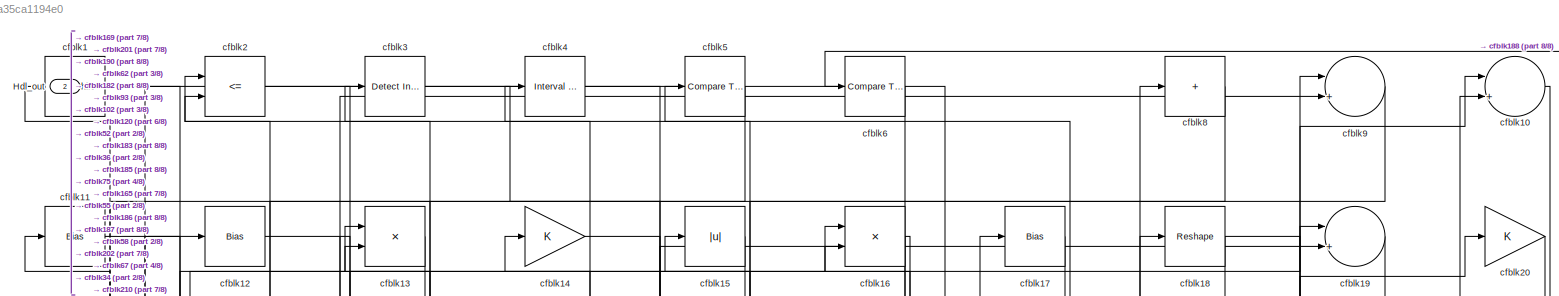
[diagram: root canvas - part 1/8, full width, top band]
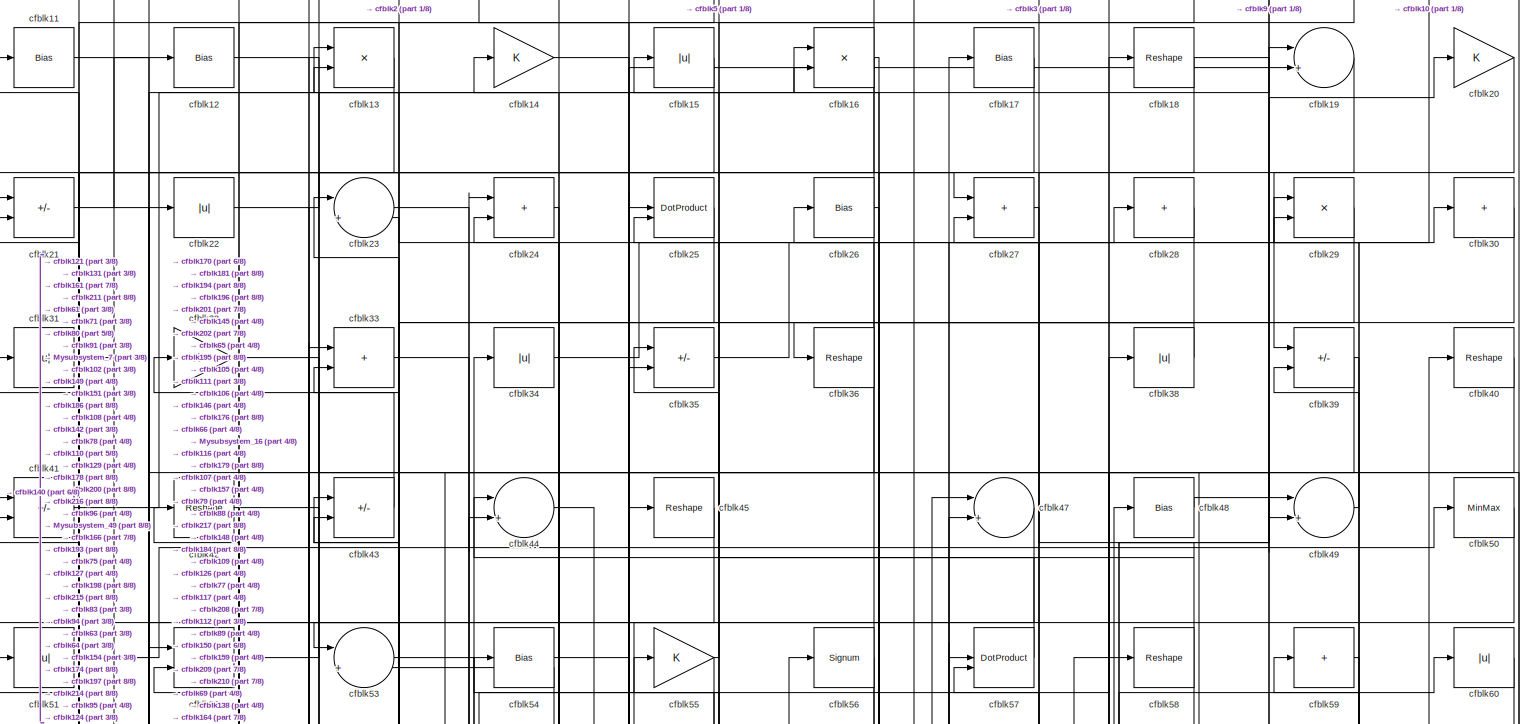
[diagram: root canvas - part 2/8, full width, top band]
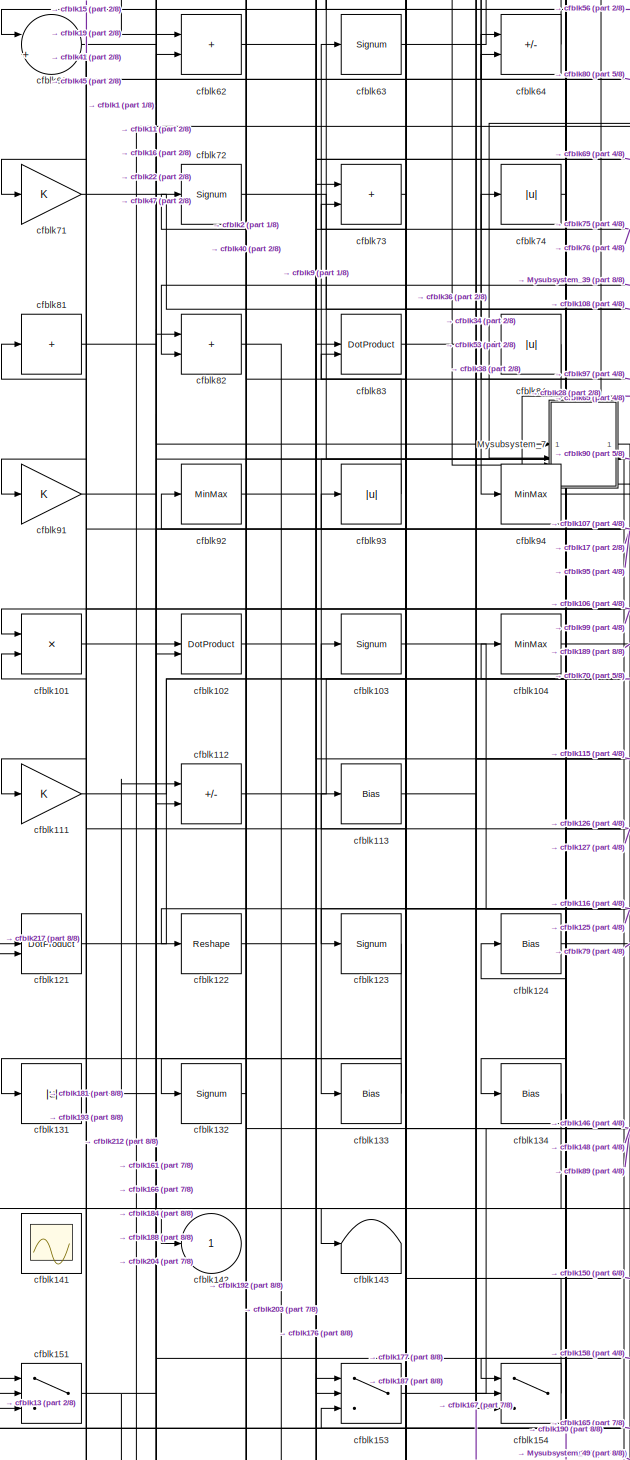
[diagram: root canvas - part 3/8, middle left region]
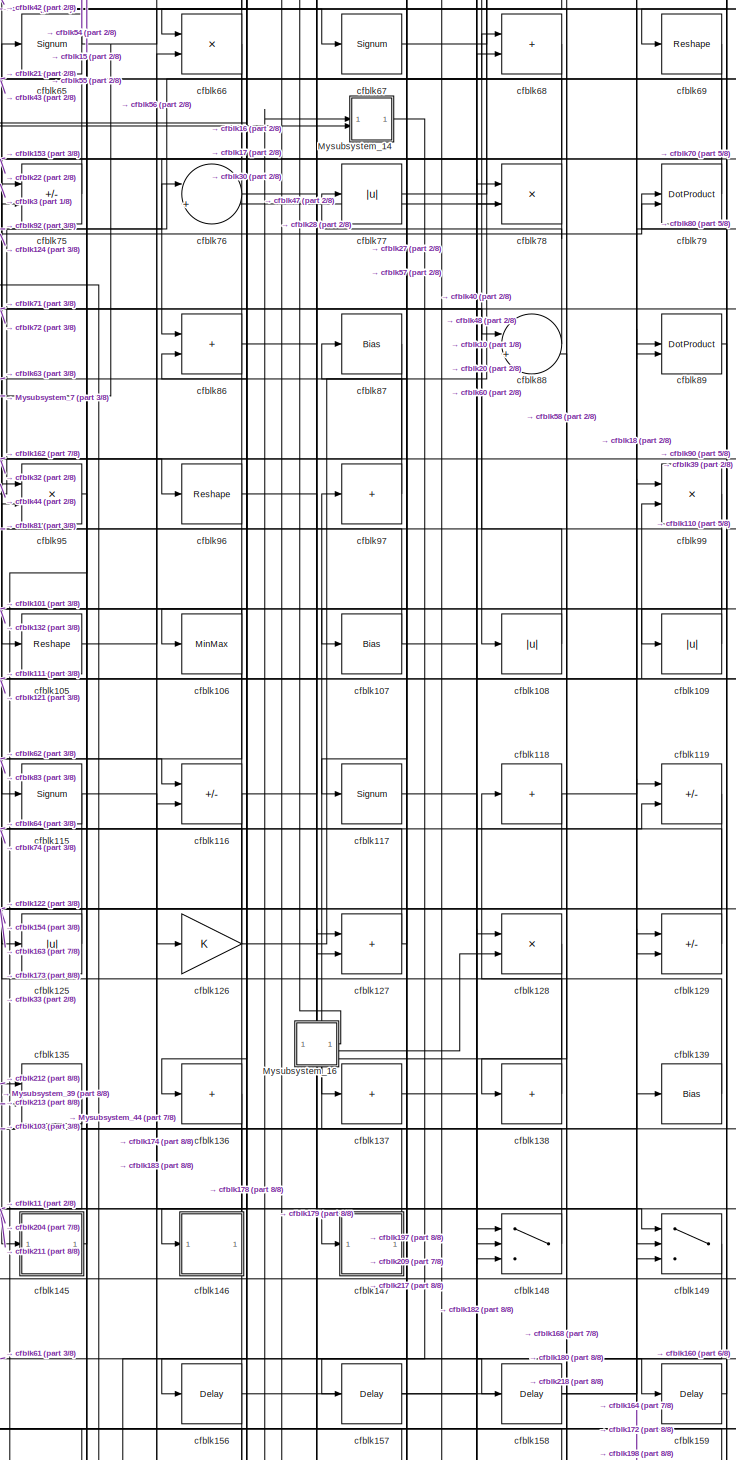
[diagram: root canvas - part 4/8, central region]
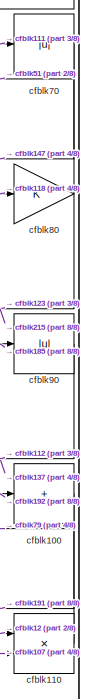
[diagram: root canvas - part 5/8, middle right region]
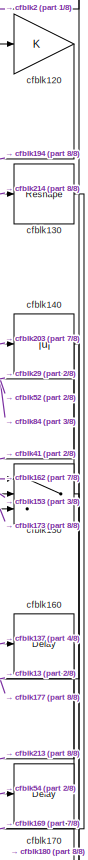
[diagram: root canvas - part 6/8, middle right region]
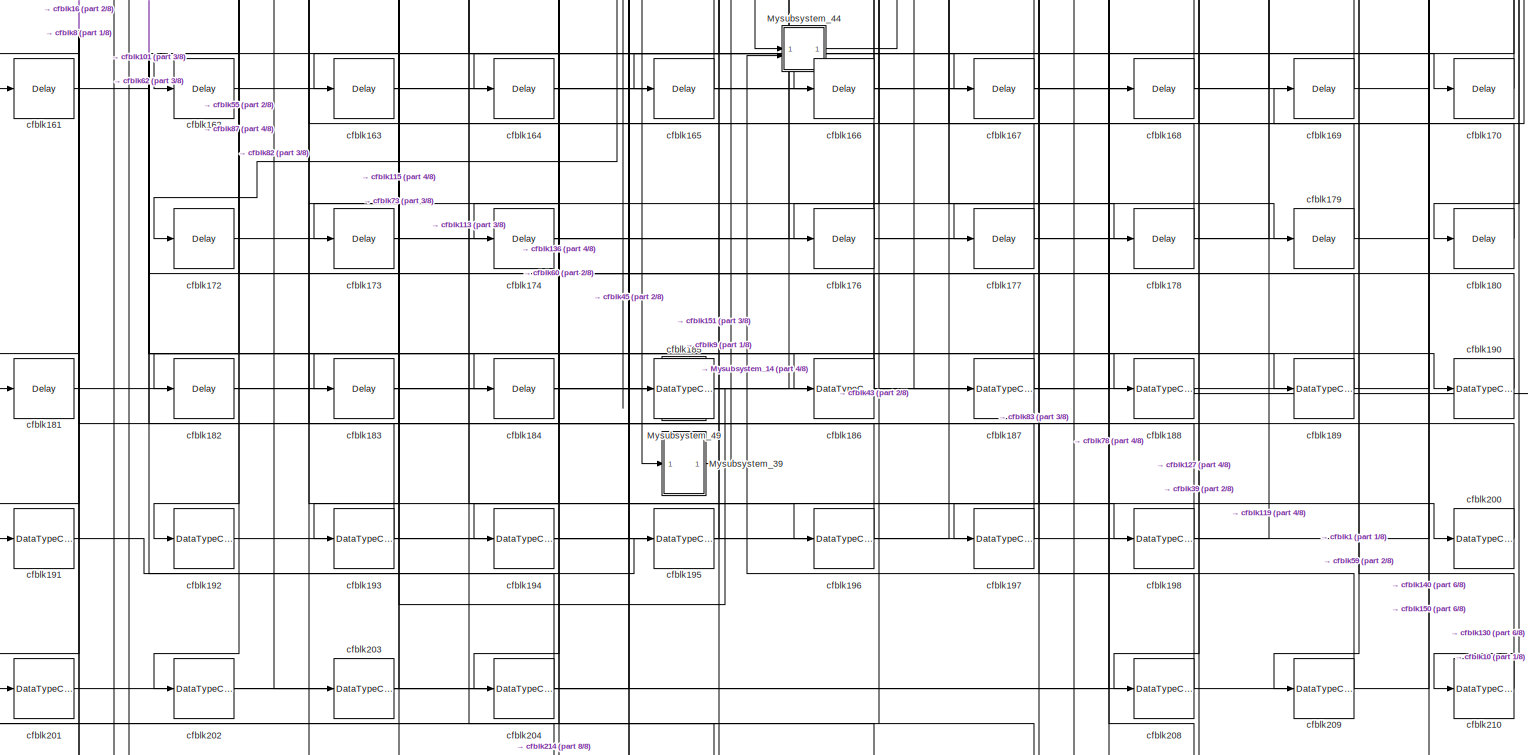
[diagram: root canvas - part 7/8, full width, bottom band]
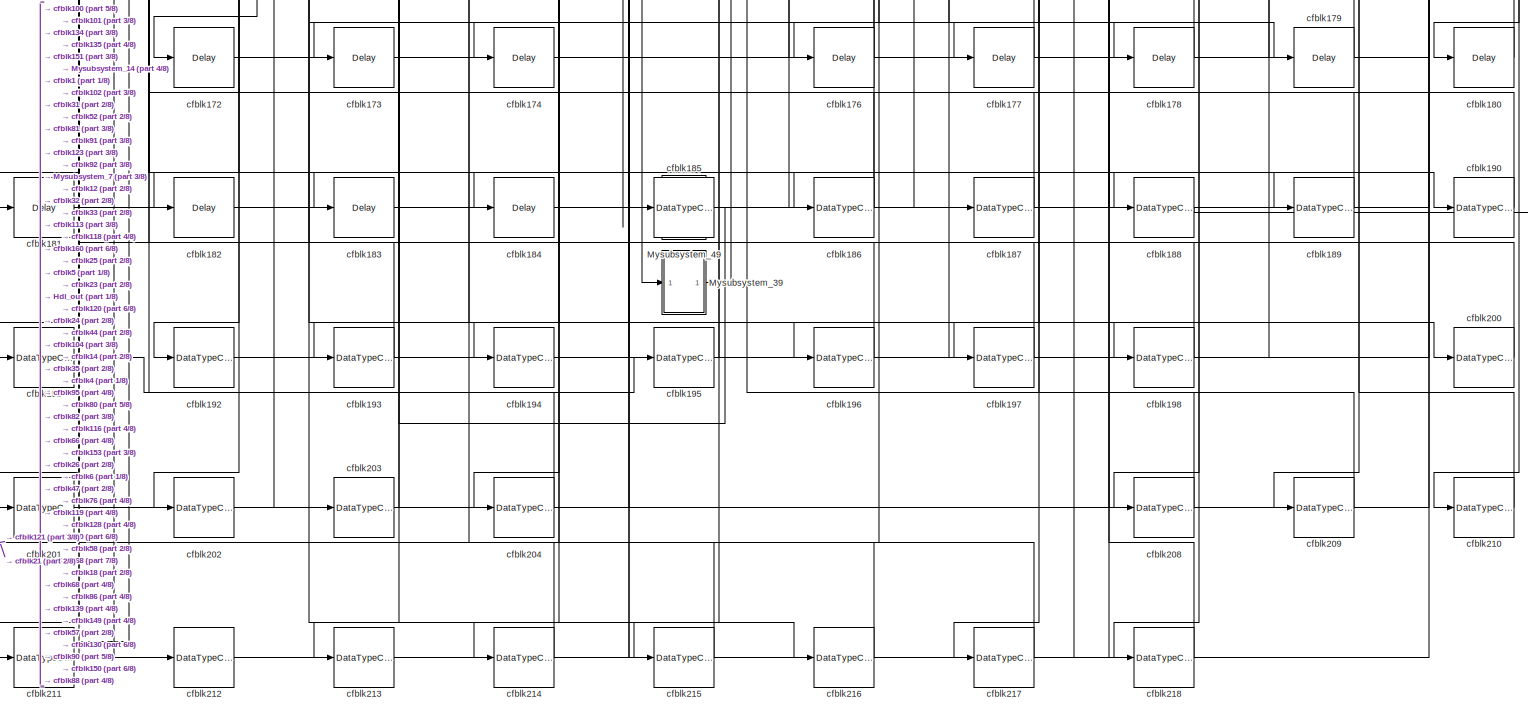
[diagram: root canvas - part 8/8, full width, bottom band]
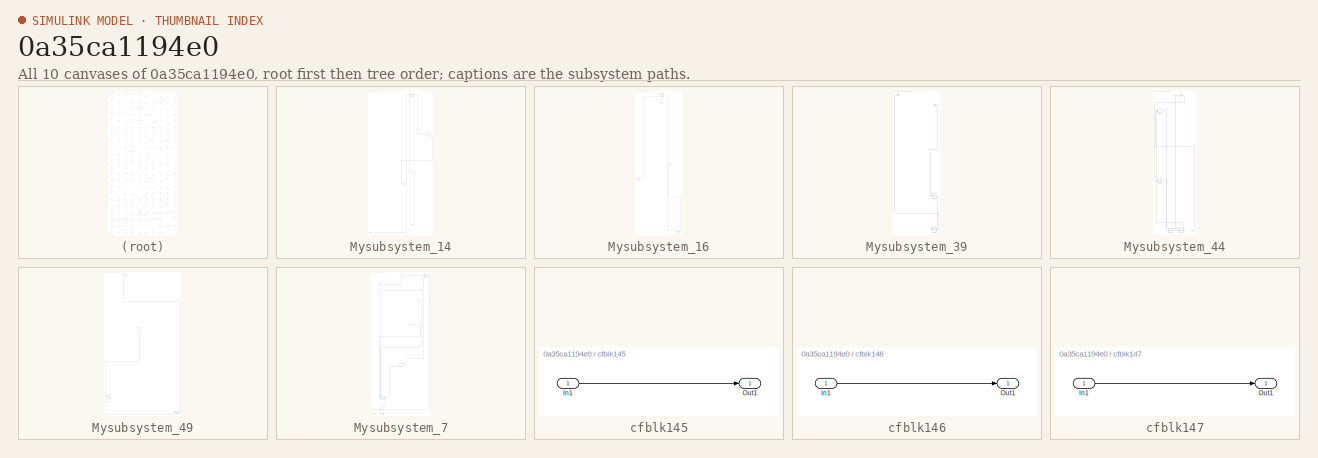
[diagram: thumbnail index - all 10 canvases of the model, root first then tree order]
MODEL slx_0a35ca1194e0
KIND model
CONFIG AbsTol = auto
CONFIG EnableMultiTasking = off
CONFIG FixedStep = auto
CONFIG MaxStep = auto
CONFIG MinStep = auto
CONFIG RelTol = 1e-3
CONFIG SampleTimeConstraint = Unconstrained
CONFIG SolverName = VariableStepAuto
CONFIG StartTime = 0.0
CONFIG StopTime = 10.0
BLOCK [Outport] Hdl_out
  OutDataTypeStr = uint8
  Port = 2
BLOCK [SubSystem] Mysubsystem_14
  RTWFcnName = Mysubsystem_14
  RTWFcnNameOpts = User specified
  RTWFileNameOpts = Use function name
  RTWSystemCode = Reusable function
  TreatAsAtomicUnit = on
BLOCK [Inport] Mysubsystem_14/In1
BLOCK [Inport] Mysubsystem_14/In2
  Port = 2
BLOCK [Outport] Mysubsystem_14/Out1
BLOCK [DotProduct] Mysubsystem_14/cfblk46
  OutDataTypeStr = Inherit: Inherit via internal rule
BLOCK [Abs] Mysubsystem_14/cfblk98
  SaturateOnIntegerOverflow = off
BLOCK [SubSystem] Mysubsystem_16
  RTWFcnName = Mysubsystem_16
  RTWFcnNameOpts = User specified
  RTWFileNameOpts = Use function name
  RTWSystemCode = Reusable function
  TreatAsAtomicUnit = on
BLOCK [Outport] Mysubsystem_16/Out1
BLOCK [Outport] Mysubsystem_16/Out2
  Port = 2
BLOCK [Ground] Mysubsystem_16/cfblk144
BLOCK [DataTypeConversion] Mysubsystem_16/cfblk219
  OutDataTypeStr = uint8
  RndMeth = Floor
  SaturateOnIntegerOverflow = off
BLOCK [Reshape] Mysubsystem_16/cfblk37
BLOCK [SubSystem] Mysubsystem_39
  RTWFcnName = Mysubsystem_39
  RTWFcnNameOpts = User specified
  RTWFileNameOpts = Use function name
  RTWSystemCode = Reusable function
  TreatAsAtomicUnit = on
BLOCK [Inport] Mysubsystem_39/In1
BLOCK [Outport] Mysubsystem_39/Out1
BLOCK [Delay] Mysubsystem_39/cfblk175
  InputPortMap = u0
  SampleTime = 1
BLOCK [DataTypeConversion] Mysubsystem_39/cfblk205
  OutDataTypeStr = uint8
  RndMeth = Floor
  SaturateOnIntegerOverflow = off
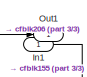
[diagram: Mysubsystem_44 - part 1/3, top center region]
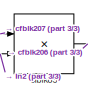
[diagram: Mysubsystem_44 - part 2/3, top left region]
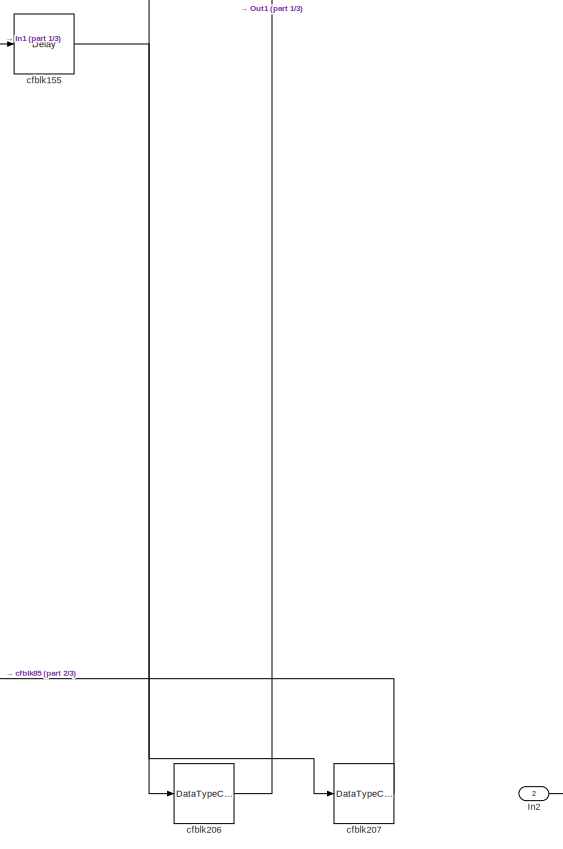
[diagram: Mysubsystem_44 - part 3/3, full width, bottom band]
BLOCK [SubSystem] Mysubsystem_44
  RTWFcnName = Mysubsystem_44
  RTWFcnNameOpts = User specified
  RTWFileNameOpts = Use function name
  RTWSystemCode = Reusable function
  TreatAsAtomicUnit = on
BLOCK [Inport] Mysubsystem_44/In1
BLOCK [Inport] Mysubsystem_44/In2
  Port = 2
BLOCK [Outport] Mysubsystem_44/Out1
BLOCK [Delay] Mysubsystem_44/cfblk155
  InputPortMap = u0
  SampleTime = 1
BLOCK [DataTypeConversion] Mysubsystem_44/cfblk206
  OutDataTypeStr = uint8
  RndMeth = Floor
  SaturateOnIntegerOverflow = off
BLOCK [DataTypeConversion] Mysubsystem_44/cfblk207
  OutDataTypeStr = uint8
  RndMeth = Floor
  SaturateOnIntegerOverflow = off
BLOCK [Product] Mysubsystem_44/cfblk85
  Inputs = */
  RndMeth = Zero
  SaturateOnIntegerOverflow = on
BLOCK [SubSystem] Mysubsystem_49
  RTWFcnName = Mysubsystem_49
  RTWFcnNameOpts = User specified
  RTWFileNameOpts = Use function name
  RTWSystemCode = Reusable function
  TreatAsAtomicUnit = on
BLOCK [Inport] Mysubsystem_49/In1
BLOCK [Outport] Mysubsystem_49/Out1
BLOCK [Delay] Mysubsystem_49/cfblk171
  InputPortMap = u0
  SampleTime = 1
BLOCK [DataTypeConversion] Mysubsystem_49/cfblk199
  OutDataTypeStr = uint8
  RndMeth = Floor
  SaturateOnIntegerOverflow = off
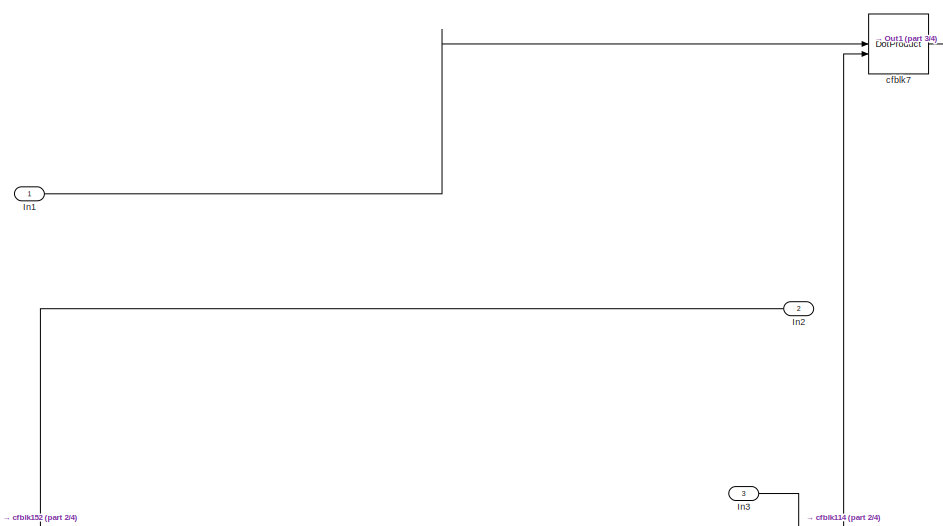
[diagram: Mysubsystem_7 - part 1/4, full width, top band]
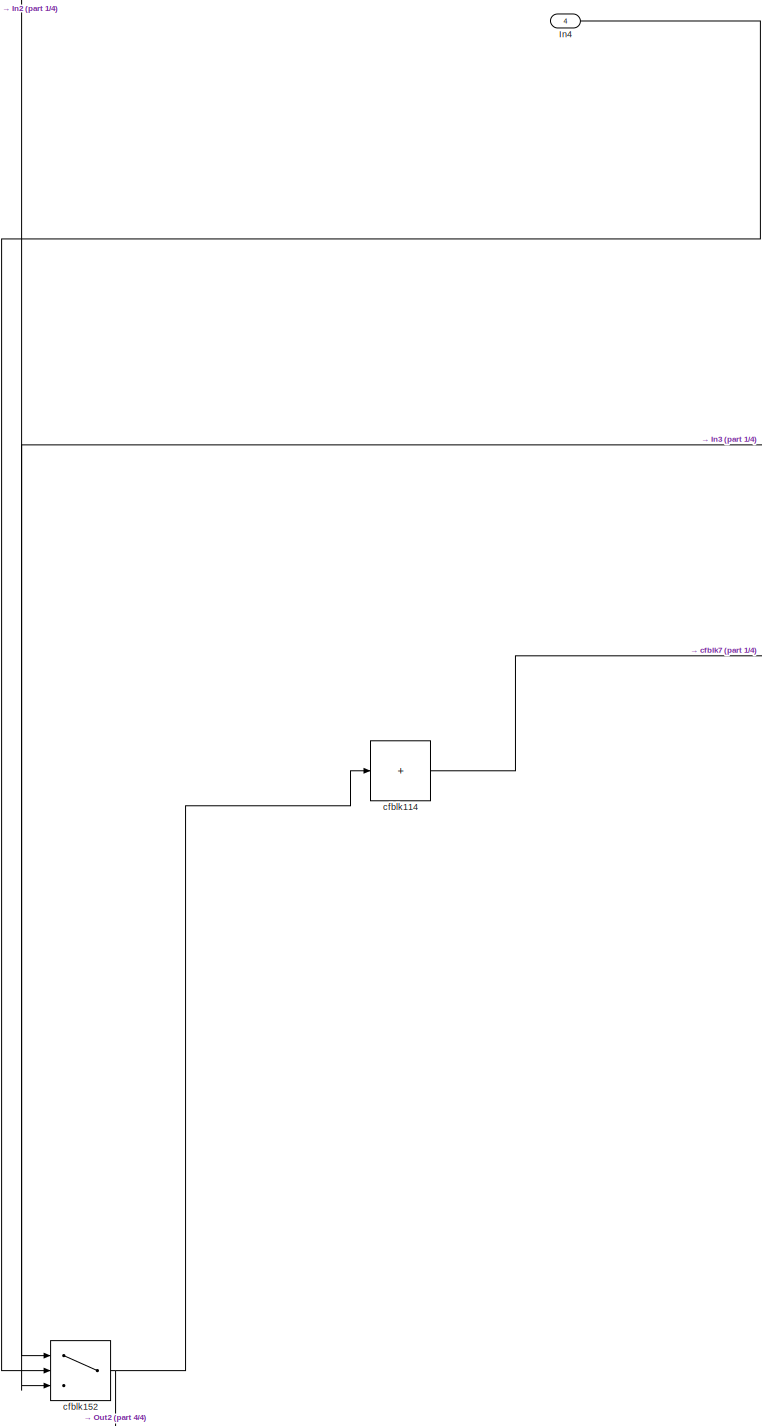
[diagram: Mysubsystem_7 - part 2/4, central region]
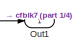
[diagram: Mysubsystem_7 - part 3/4, bottom left region]
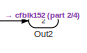
[diagram: Mysubsystem_7 - part 4/4, bottom left region]
BLOCK [SubSystem] Mysubsystem_7
  RTWFcnName = Mysubsystem_7
  RTWFcnNameOpts = User specified
  RTWFileNameOpts = Use function name
  RTWSystemCode = Reusable function
  TreatAsAtomicUnit = on
BLOCK [Inport] Mysubsystem_7/In1
BLOCK [Inport] Mysubsystem_7/In2
  Port = 2
BLOCK [Inport] Mysubsystem_7/In3
  Port = 3
BLOCK [Inport] Mysubsystem_7/In4
  Port = 4
BLOCK [Outport] Mysubsystem_7/Out1
BLOCK [Outport] Mysubsystem_7/Out2
  Port = 2
BLOCK [Sum] Mysubsystem_7/cfblk114
  IconShape = rectangular
  Inputs = +
BLOCK [Switch] Mysubsystem_7/cfblk152
  InputSameDT = off
  SaturateOnIntegerOverflow = off
BLOCK [DotProduct] Mysubsystem_7/cfblk7
  OutDataTypeStr = Inherit: Inherit via internal rule
BLOCK [ArithShift] cfblk1
  BitShiftNumber = 8
  InputPortMap = u0
BLOCK [Sum] cfblk10
  Inputs = |++
  OutDataTypeStr = uint8
BLOCK [Sum] cfblk100
  IconShape = rectangular
  Inputs = +
  OutDataTypeStr = uint8
BLOCK [Product] cfblk101
  Inputs = */
  OutDataTypeStr = uint8
  RndMeth = Zero
  SaturateOnIntegerOverflow = on
BLOCK [DotProduct] cfblk102
  OutDataTypeStr = uint8
BLOCK [Signum] cfblk103
BLOCK [MinMax] cfblk104
  OutDataTypeStr = uint8
BLOCK [Reshape] cfblk105
BLOCK [MinMax] cfblk106
  OutDataTypeStr = uint8
BLOCK [Bias] cfblk107
  Bias = 0.0
  SaturateOnIntegerOverflow = off
BLOCK [Abs] cfblk108
  OutDataTypeStr = uint8
  SaturateOnIntegerOverflow = off
BLOCK [Abs] cfblk109
  OutDataTypeStr = uint8
  SaturateOnIntegerOverflow = off
BLOCK [Bias] cfblk11
  Bias = 0.0
  SaturateOnIntegerOverflow = off
BLOCK [Product] cfblk110
  Inputs = */
  OutDataTypeStr = uint8
  RndMeth = Zero
  SaturateOnIntegerOverflow = on
BLOCK [Gain] cfblk111
  OutDataTypeStr = uint8
BLOCK [Sum] cfblk112
  IconShape = rectangular
  Inputs = +-
  OutDataTypeStr = uint8
BLOCK [Bias] cfblk113
  Bias = 0.0
  SaturateOnIntegerOverflow = off
BLOCK [Signum] cfblk115
BLOCK [Sum] cfblk116
  IconShape = rectangular
  Inputs = +-
  OutDataTypeStr = uint8
BLOCK [Signum] cfblk117
BLOCK [Sum] cfblk118
  IconShape = rectangular
  Inputs = +
  OutDataTypeStr = uint8
BLOCK [Sum] cfblk119
  IconShape = rectangular
  Inputs = +-
  OutDataTypeStr = uint8
BLOCK [Bias] cfblk12
  Bias = 0.0
  SaturateOnIntegerOverflow = off
BLOCK [Gain] cfblk120
  OutDataTypeStr = uint8
BLOCK [DotProduct] cfblk121
  OutDataTypeStr = uint8
BLOCK [Reshape] cfblk122
BLOCK [Signum] cfblk123
BLOCK [Bias] cfblk124
  Bias = 0.0
  SaturateOnIntegerOverflow = off
BLOCK [Abs] cfblk125
  OutDataTypeStr = uint8
  SaturateOnIntegerOverflow = off
BLOCK [Gain] cfblk126
  OutDataTypeStr = uint8
BLOCK [Sum] cfblk127
  IconShape = rectangular
  OutDataTypeStr = uint8
BLOCK [Product] cfblk128
  Inputs = */
  OutDataTypeStr = uint8
  RndMeth = Zero
  SaturateOnIntegerOverflow = on
BLOCK [Sum] cfblk129
  IconShape = rectangular
  Inputs = +-
  OutDataTypeStr = uint8
BLOCK [Product] cfblk13
  Inputs = */
  OutDataTypeStr = uint8
  RndMeth = Zero
  SaturateOnIntegerOverflow = on
BLOCK [Reshape] cfblk130
BLOCK [Abs] cfblk131
  OutDataTypeStr = uint8
  SaturateOnIntegerOverflow = off
BLOCK [Signum] cfblk132
BLOCK [Bias] cfblk133
  Bias = 0.0
  SaturateOnIntegerOverflow = off
BLOCK [Bias] cfblk134
  Bias = 0.0
  SaturateOnIntegerOverflow = off
BLOCK [Sum] cfblk135
  IconShape = rectangular
  OutDataTypeStr = uint8
BLOCK [Sum] cfblk136
  IconShape = rectangular
  Inputs = +
  OutDataTypeStr = uint8
BLOCK [Sum] cfblk137
  IconShape = rectangular
  Inputs = +
  OutDataTypeStr = uint8
BLOCK [Sum] cfblk138
  IconShape = rectangular
  Inputs = +
  OutDataTypeStr = uint8
BLOCK [Bias] cfblk139
  Bias = 0.0
  SaturateOnIntegerOverflow = off
BLOCK [Gain] cfblk14
  OutDataTypeStr = uint8
BLOCK [Abs] cfblk140
  OutDataTypeStr = uint8
  SaturateOnIntegerOverflow = off
BLOCK [Scope] cfblk141
  Floating = on
  NumInputPorts = 1
  ScopeSpecificationString = Simulink.scopes.TimeScopeBlockCfg('CurrentConfiguration', extmgr.ConfigurationSet(extmgr.Configuration('Core','General UI',true,'FigureColor',[0.156862745098039 0.156862745098039 0.156862745098039]),extmgr.Configuration('Core','Source UI',true),extmgr.Configuration('Sources','WiredSimulink',true,'DataLoggingVariableName','ScopeData1','DataLoggingSaveFormat','StructureWithTime','DataLoggingLimitDat...<+2713ch>
BLOCK [Outport] cfblk142
  OutDataTypeStr = uint8
  VectorParamsAs1DForOutWhenUnconnected = off
BLOCK [Terminator] cfblk143
BLOCK [SubSystem] cfblk145
  LibrarySourceBlock = hdlsllib/Ports &\nSubsystems/Subsystem
BLOCK [Inport] cfblk145/In1
BLOCK [Outport] cfblk145/Out1
BLOCK [SubSystem] cfblk146
  LibrarySourceBlock = hdlsllib/Ports &\nSubsystems/Subsystem
BLOCK [Inport] cfblk146/In1
BLOCK [Outport] cfblk146/Out1
BLOCK [SubSystem] cfblk147
  LibrarySourceBlock = hdlsllib/Ports &\nSubsystems/Subsystem
BLOCK [Inport] cfblk147/In1
BLOCK [Outport] cfblk147/Out1
BLOCK [Switch] cfblk148
  InputSameDT = off
  OutDataTypeStr = uint8
  SaturateOnIntegerOverflow = off
BLOCK [Switch] cfblk149
  InputSameDT = off
  OutDataTypeStr = uint8
  SaturateOnIntegerOverflow = off
BLOCK [Abs] cfblk15
  OutDataTypeStr = uint8
  SaturateOnIntegerOverflow = off
BLOCK [Switch] cfblk150
  InputSameDT = off
  OutDataTypeStr = uint8
  SaturateOnIntegerOverflow = off
BLOCK [Switch] cfblk151
  InputSameDT = off
  OutDataTypeStr = uint8
  SaturateOnIntegerOverflow = off
BLOCK [Switch] cfblk153
  InputSameDT = off
  OutDataTypeStr = uint8
  SaturateOnIntegerOverflow = off
BLOCK [Switch] cfblk154
  InputSameDT = off
  OutDataTypeStr = uint8
  SaturateOnIntegerOverflow = off
BLOCK [Delay] cfblk156
  InputPortMap = u0
  SampleTime = 1
BLOCK [Delay] cfblk157
  InputPortMap = u0
  SampleTime = 1
BLOCK [Delay] cfblk158
  InputPortMap = u0
  SampleTime = 1
BLOCK [Delay] cfblk159
  InputPortMap = u0
  SampleTime = 1
BLOCK [Product] cfblk16
  Inputs = */
  OutDataTypeStr = uint8
  RndMeth = Zero
  SaturateOnIntegerOverflow = on
BLOCK [Delay] cfblk160
  InputPortMap = u0
  SampleTime = 1
BLOCK [Delay] cfblk161
  InputPortMap = u0
  SampleTime = 1
BLOCK [Delay] cfblk162
  InputPortMap = u0
  SampleTime = 1
BLOCK [Delay] cfblk163
  InputPortMap = u0
  SampleTime = 1
BLOCK [Delay] cfblk164
  InputPortMap = u0
  SampleTime = 1
BLOCK [Delay] cfblk165
  InputPortMap = u0
  SampleTime = 1
BLOCK [Delay] cfblk166
  InputPortMap = u0
  SampleTime = 1
BLOCK [Delay] cfblk167
  InputPortMap = u0
  SampleTime = 1
BLOCK [Delay] cfblk168
  InputPortMap = u0
  SampleTime = 1
BLOCK [Delay] cfblk169
  InputPortMap = u0
  SampleTime = 1
BLOCK [Bias] cfblk17
  Bias = 0.0
  SaturateOnIntegerOverflow = off
BLOCK [Delay] cfblk170
  InputPortMap = u0
  SampleTime = 1
BLOCK [Delay] cfblk172
  InputPortMap = u0
  SampleTime = 1
BLOCK [Delay] cfblk173
  InputPortMap = u0
  SampleTime = 1
BLOCK [Delay] cfblk174
  InputPortMap = u0
  SampleTime = 1
BLOCK [Delay] cfblk176
  InputPortMap = u0
  SampleTime = 1
BLOCK [Delay] cfblk177
  InputPortMap = u0
  SampleTime = 1
BLOCK [Delay] cfblk178
  InputPortMap = u0
  SampleTime = 1
BLOCK [Delay] cfblk179
  InputPortMap = u0
  SampleTime = 1
BLOCK [Reshape] cfblk18
BLOCK [Delay] cfblk180
  InputPortMap = u0
  SampleTime = 1
BLOCK [Delay] cfblk181
  InputPortMap = u0
  SampleTime = 1
BLOCK [Delay] cfblk182
  InputPortMap = u0
  SampleTime = 1
BLOCK [Delay] cfblk183
  InputPortMap = u0
  SampleTime = 1
BLOCK [Delay] cfblk184
  InputPortMap = u0
  SampleTime = 1
BLOCK [DataTypeConversion] cfblk185
  OutDataTypeStr = uint8
  RndMeth = Floor
  SaturateOnIntegerOverflow = off
BLOCK [DataTypeConversion] cfblk186
  OutDataTypeStr = uint8
  RndMeth = Floor
  SaturateOnIntegerOverflow = off
BLOCK [DataTypeConversion] cfblk187
  OutDataTypeStr = uint8
  RndMeth = Floor
  SaturateOnIntegerOverflow = off
BLOCK [DataTypeConversion] cfblk188
  OutDataTypeStr = uint8
  RndMeth = Floor
  SaturateOnIntegerOverflow = off
BLOCK [DataTypeConversion] cfblk189
  OutDataTypeStr = uint8
  RndMeth = Floor
  SaturateOnIntegerOverflow = off
BLOCK [Sum] cfblk19
  Inputs = |++
  OutDataTypeStr = uint8
BLOCK [DataTypeConversion] cfblk190
  OutDataTypeStr = uint8
  RndMeth = Floor
  SaturateOnIntegerOverflow = off
BLOCK [DataTypeConversion] cfblk191
  OutDataTypeStr = uint8
  RndMeth = Floor
  SaturateOnIntegerOverflow = off
BLOCK [DataTypeConversion] cfblk192
  OutDataTypeStr = uint8
  RndMeth = Floor
  SaturateOnIntegerOverflow = off
BLOCK [DataTypeConversion] cfblk193
  OutDataTypeStr = uint8
  RndMeth = Floor
  SaturateOnIntegerOverflow = off
BLOCK [DataTypeConversion] cfblk194
  OutDataTypeStr = uint8
  RndMeth = Floor
  SaturateOnIntegerOverflow = off
BLOCK [DataTypeConversion] cfblk195
  OutDataTypeStr = uint8
  RndMeth = Floor
  SaturateOnIntegerOverflow = off
BLOCK [DataTypeConversion] cfblk196
  OutDataTypeStr = uint8
  RndMeth = Floor
  SaturateOnIntegerOverflow = off
BLOCK [DataTypeConversion] cfblk197
  OutDataTypeStr = uint8
  RndMeth = Floor
  SaturateOnIntegerOverflow = off
BLOCK [DataTypeConversion] cfblk198
  OutDataTypeStr = uint8
  RndMeth = Floor
  SaturateOnIntegerOverflow = off
BLOCK [RelationalOperator] cfblk2
  InputSameDT = off
  Operator = <=
  OutDataTypeStr = boolean
BLOCK [Gain] cfblk20
  OutDataTypeStr = uint8
BLOCK [DataTypeConversion] cfblk200
  OutDataTypeStr = uint8
  RndMeth = Floor
  SaturateOnIntegerOverflow = off
BLOCK [DataTypeConversion] cfblk201
  OutDataTypeStr = uint8
  RndMeth = Floor
  SaturateOnIntegerOverflow = off
BLOCK [DataTypeConversion] cfblk202
  OutDataTypeStr = uint8
  RndMeth = Floor
  SaturateOnIntegerOverflow = off
BLOCK [DataTypeConversion] cfblk203
  OutDataTypeStr = uint8
  RndMeth = Floor
  SaturateOnIntegerOverflow = off
BLOCK [DataTypeConversion] cfblk204
  OutDataTypeStr = uint8
  RndMeth = Floor
  SaturateOnIntegerOverflow = off
BLOCK [DataTypeConversion] cfblk208
  OutDataTypeStr = uint8
  RndMeth = Floor
  SaturateOnIntegerOverflow = off
BLOCK [DataTypeConversion] cfblk209
  OutDataTypeStr = uint8
  RndMeth = Floor
  SaturateOnIntegerOverflow = off
BLOCK [Sum] cfblk21
  IconShape = rectangular
  Inputs = +-
  OutDataTypeStr = uint8
BLOCK [DataTypeConversion] cfblk210
  OutDataTypeStr = uint8
  RndMeth = Floor
  SaturateOnIntegerOverflow = off
BLOCK [DataTypeConversion] cfblk211
  OutDataTypeStr = uint8
  RndMeth = Floor
  SaturateOnIntegerOverflow = off
BLOCK [DataTypeConversion] cfblk212
  OutDataTypeStr = uint8
  RndMeth = Floor
  SaturateOnIntegerOverflow = off
BLOCK [DataTypeConversion] cfblk213
  OutDataTypeStr = uint8
  RndMeth = Floor
  SaturateOnIntegerOverflow = off
BLOCK [DataTypeConversion] cfblk214
  OutDataTypeStr = uint8
  RndMeth = Floor
  SaturateOnIntegerOverflow = off
BLOCK [DataTypeConversion] cfblk215
  OutDataTypeStr = uint8
  RndMeth = Floor
  SaturateOnIntegerOverflow = off
BLOCK [DataTypeConversion] cfblk216
  OutDataTypeStr = uint8
  RndMeth = Floor
  SaturateOnIntegerOverflow = off
BLOCK [DataTypeConversion] cfblk217
  OutDataTypeStr = uint8
  RndMeth = Floor
  SaturateOnIntegerOverflow = off
BLOCK [DataTypeConversion] cfblk218
  OutDataTypeStr = uint8
  RndMeth = Floor
  SaturateOnIntegerOverflow = off
BLOCK [Abs] cfblk22
  OutDataTypeStr = uint8
  SaturateOnIntegerOverflow = off
BLOCK [Sum] cfblk23
  Inputs = |++
  OutDataTypeStr = uint8
BLOCK [Sum] cfblk24
  IconShape = rectangular
  OutDataTypeStr = uint8
BLOCK [DotProduct] cfblk25
  OutDataTypeStr = uint8
BLOCK [Bias] cfblk26
  Bias = 0.0
  SaturateOnIntegerOverflow = off
BLOCK [Sum] cfblk27
  IconShape = rectangular
  OutDataTypeStr = uint8
BLOCK [Sum] cfblk28
  IconShape = rectangular
  Inputs = +
  OutDataTypeStr = uint8
BLOCK [Product] cfblk29
  Inputs = */
  OutDataTypeStr = uint8
  RndMeth = Zero
  SaturateOnIntegerOverflow = on
BLOCK [Reference] cfblk3  REF=simulink/Logic and Bit
Operations/Detect
Increase
  LibrarySourceBlock = hdlsllib/Logic and Bit\nOperations/Detect\nIncrease
  SourceBlock = simulink/Logic and Bit\nOperations/Detect\nIncrease
  SourceType = Detect Increase
BLOCK [Sum] cfblk30
  IconShape = rectangular
  Inputs = +
  OutDataTypeStr = uint8
BLOCK [Abs] cfblk31
  OutDataTypeStr = uint8
  SaturateOnIntegerOverflow = off
BLOCK [Gain] cfblk32
  OutDataTypeStr = uint8
BLOCK [Sum] cfblk33
  IconShape = rectangular
  OutDataTypeStr = uint8
BLOCK [Abs] cfblk34
  OutDataTypeStr = uint8
  SaturateOnIntegerOverflow = off
BLOCK [Sum] cfblk35
  IconShape = rectangular
  Inputs = +-
  OutDataTypeStr = uint8
BLOCK [Reshape] cfblk36
BLOCK [Abs] cfblk38
  OutDataTypeStr = uint8
  SaturateOnIntegerOverflow = off
BLOCK [Sum] cfblk39
  IconShape = rectangular
  Inputs = +-
  OutDataTypeStr = uint8
BLOCK [Reference] cfblk4  REF=hdlsllib/Logic and Bit
Operations/Interval Test
  SourceBlock = hdlsllib/Logic and Bit\nOperations/Interval Test
  SourceType = Interval Test
BLOCK [Reshape] cfblk40
BLOCK [Sum] cfblk41
  IconShape = rectangular
  Inputs = +-
  OutDataTypeStr = uint8
BLOCK [Reshape] cfblk42
BLOCK [Sum] cfblk43
  IconShape = rectangular
  Inputs = +-
  OutDataTypeStr = uint8
BLOCK [Sum] cfblk44
  Inputs = |++
  OutDataTypeStr = uint8
BLOCK [Reshape] cfblk45
BLOCK [Sum] cfblk47
  Inputs = |++
  OutDataTypeStr = uint8
BLOCK [Bias] cfblk48
  Bias = 0.0
  SaturateOnIntegerOverflow = off
BLOCK [Sum] cfblk49
  Inputs = |++
  OutDataTypeStr = uint8
BLOCK [Reference] cfblk5  REF=hdlsllib/Logic and Bit
Operations/Compare
To Constant
  SourceBlock = hdlsllib/Logic and Bit\nOperations/Compare\nTo Constant
  SourceType = Compare To Constant
BLOCK [MinMax] cfblk50
  OutDataTypeStr = uint8
BLOCK [Abs] cfblk51
  OutDataTypeStr = uint8
  SaturateOnIntegerOverflow = off
BLOCK [Sum] cfblk52
  IconShape = rectangular
  Inputs = +-
  OutDataTypeStr = uint8
BLOCK [Sum] cfblk53
  Inputs = |++
  OutDataTypeStr = uint8
BLOCK [Bias] cfblk54
  Bias = 0.0
  SaturateOnIntegerOverflow = off
BLOCK [Gain] cfblk55
  OutDataTypeStr = uint8
BLOCK [Signum] cfblk56
BLOCK [DotProduct] cfblk57
  OutDataTypeStr = uint8
BLOCK [Reshape] cfblk58
BLOCK [Sum] cfblk59
  IconShape = rectangular
  Inputs = +
  OutDataTypeStr = uint8
BLOCK [Reference] cfblk6  REF=hdlsllib/Logic and Bit
Operations/Compare
To Constant
  SourceBlock = hdlsllib/Logic and Bit\nOperations/Compare\nTo Constant
  SourceType = Compare To Constant
BLOCK [Abs] cfblk60
  OutDataTypeStr = uint8
  SaturateOnIntegerOverflow = off
BLOCK [Sum] cfblk61
  Inputs = |++
  OutDataTypeStr = uint8
BLOCK [Sum] cfblk62
  IconShape = rectangular
  OutDataTypeStr = uint8
BLOCK [Signum] cfblk63
BLOCK [Sum] cfblk64
  IconShape = rectangular
  Inputs = +-
  OutDataTypeStr = uint8
BLOCK [Signum] cfblk65
BLOCK [Product] cfblk66
  Inputs = */
  OutDataTypeStr = uint8
  RndMeth = Zero
  SaturateOnIntegerOverflow = on
BLOCK [Signum] cfblk67
BLOCK [Sum] cfblk68
  IconShape = rectangular
  OutDataTypeStr = uint8
BLOCK [Reshape] cfblk69
BLOCK [Abs] cfblk70
  OutDataTypeStr = uint8
  SaturateOnIntegerOverflow = off
BLOCK [Gain] cfblk71
  OutDataTypeStr = uint8
BLOCK [Signum] cfblk72
BLOCK [Sum] cfblk73
  IconShape = rectangular
  OutDataTypeStr = uint8
BLOCK [Abs] cfblk74
  OutDataTypeStr = uint8
  SaturateOnIntegerOverflow = off
BLOCK [Sum] cfblk75
  IconShape = rectangular
  Inputs = +-
  OutDataTypeStr = uint8
BLOCK [Sum] cfblk76
  Inputs = |++
  OutDataTypeStr = uint8
BLOCK [Abs] cfblk77
  OutDataTypeStr = uint8
  SaturateOnIntegerOverflow = off
BLOCK [Product] cfblk78
  Inputs = */
  OutDataTypeStr = uint8
  RndMeth = Zero
  SaturateOnIntegerOverflow = on
BLOCK [DotProduct] cfblk79
  OutDataTypeStr = uint8
BLOCK [Sum] cfblk8
  IconShape = rectangular
  Inputs = +
  OutDataTypeStr = uint8
BLOCK [Gain] cfblk80
  OutDataTypeStr = uint8
BLOCK [Sum] cfblk81
  IconShape = rectangular
  Inputs = +
  OutDataTypeStr = uint8
BLOCK [Sum] cfblk82
  IconShape = rectangular
  OutDataTypeStr = uint8
BLOCK [DotProduct] cfblk83
  OutDataTypeStr = uint8
BLOCK [Abs] cfblk84
  OutDataTypeStr = uint8
  SaturateOnIntegerOverflow = off
BLOCK [Sum] cfblk86
  IconShape = rectangular
  OutDataTypeStr = uint8
BLOCK [Bias] cfblk87
  Bias = 0.0
  SaturateOnIntegerOverflow = off
BLOCK [Sum] cfblk88
  Inputs = |++
  OutDataTypeStr = uint8
BLOCK [DotProduct] cfblk89
  OutDataTypeStr = uint8
BLOCK [Sum] cfblk9
  Inputs = |++
  OutDataTypeStr = uint8
BLOCK [Abs] cfblk90
  OutDataTypeStr = uint8
  SaturateOnIntegerOverflow = off
BLOCK [Gain] cfblk91
  OutDataTypeStr = uint8
BLOCK [MinMax] cfblk92
  OutDataTypeStr = uint8
BLOCK [Abs] cfblk93
  OutDataTypeStr = uint8
  SaturateOnIntegerOverflow = off
BLOCK [MinMax] cfblk94
  OutDataTypeStr = uint8
BLOCK [Product] cfblk95
  Inputs = */
  OutDataTypeStr = uint8
  RndMeth = Zero
  SaturateOnIntegerOverflow = on
BLOCK [Reshape] cfblk96
BLOCK [Sum] cfblk97
  IconShape = rectangular
  Inputs = +
  OutDataTypeStr = uint8
BLOCK [Product] cfblk99
  Inputs = */
  OutDataTypeStr = uint8
  RndMeth = Zero
  SaturateOnIntegerOverflow = on
LINE Mysubsystem_14/In1:1 -> Mysubsystem_14/cfblk46:2
LINE Mysubsystem_14/In2:1 -> Mysubsystem_14/cfblk46:1
LINE Mysubsystem_14/cfblk46:1 -> Mysubsystem_14/cfblk98:1
LINE Mysubsystem_14/cfblk98:1 -> Mysubsystem_14/Out1:1
LINE Mysubsystem_14:1 -> Mysubsystem_44:1
LINE Mysubsystem_16/cfblk144:1 -> Mysubsystem_16/cfblk37:1
LINE Mysubsystem_16/cfblk219:1 -> Mysubsystem_16/Out2:1
NET Mysubsystem_16/cfblk37:1 -> Mysubsystem_16/Out1:1, Mysubsystem_16/cfblk219:1
LINE Mysubsystem_16:1 -> cfblk47:1
LINE Mysubsystem_16:2 -> cfblk128:2
LINE Mysubsystem_39/In1:1 -> Mysubsystem_39/cfblk175:1
LINE Mysubsystem_39/cfblk175:1 -> Mysubsystem_39/cfblk205:1
LINE Mysubsystem_39/cfblk205:1 -> Mysubsystem_39/Out1:1
LINE Mysubsystem_39:1 -> cfblk82:2
LINE Mysubsystem_44/In1:1 -> Mysubsystem_44/cfblk155:1
LINE Mysubsystem_44/In2:1 -> Mysubsystem_44/cfblk85:2
LINE Mysubsystem_44/cfblk155:1 -> Mysubsystem_44/cfblk207:1
LINE Mysubsystem_44/cfblk206:1 -> Mysubsystem_44/Out1:1
LINE Mysubsystem_44/cfblk207:1 -> Mysubsystem_44/cfblk85:1
LINE Mysubsystem_44/cfblk85:1 -> Mysubsystem_44/cfblk206:1
LINE Mysubsystem_44:1 -> Mysubsystem_14:1
LINE Mysubsystem_49/In1:1 -> Mysubsystem_49/cfblk171:1
LINE Mysubsystem_49/cfblk171:1 -> Mysubsystem_49/cfblk199:1
LINE Mysubsystem_49/cfblk199:1 -> Mysubsystem_49/Out1:1
LINE Mysubsystem_49:1 -> cfblk23:1
LINE Mysubsystem_7/In1:1 -> Mysubsystem_7/cfblk7:1
LINE Mysubsystem_7/In2:1 -> Mysubsystem_7/cfblk152:3
LINE Mysubsystem_7/In3:1 -> Mysubsystem_7/cfblk152:1
LINE Mysubsystem_7/In4:1 -> Mysubsystem_7/cfblk152:2
LINE Mysubsystem_7/cfblk114:1 -> Mysubsystem_7/cfblk7:2
NET Mysubsystem_7/cfblk152:1 -> Mysubsystem_7/Out2:1, Mysubsystem_7/cfblk114:1
LINE Mysubsystem_7/cfblk7:1 -> Mysubsystem_7/Out1:1
LINE Mysubsystem_7:1 -> Mysubsystem_49:1
LINE Mysubsystem_7:2 -> cfblk172:1
LINE cfblk100:1 -> cfblk191:1
LINE cfblk101:1 -> cfblk166:1
LINE cfblk102:1 -> cfblk9:2
LINE cfblk103:1 -> cfblk125:1
LINE cfblk104:1 -> cfblk189:1
LINE cfblk105:1 -> cfblk56:1
NET cfblk106:1 -> cfblk101:1, cfblk154:2
NET cfblk107:1 -> cfblk110:2, cfblk16:1, cfblk81:1
LINE cfblk108:1 -> cfblk42:1
LINE cfblk109:1 -> cfblk48:1
LINE cfblk10:1 -> cfblk210:1
LINE cfblk110:1 -> cfblk79:1
NET cfblk111:1 -> cfblk70:1, cfblk99:2
LINE cfblk112:1 -> cfblk19:1
LINE cfblk113:1 -> cfblk167:1
NET cfblk115:1 -> cfblk149:1, cfblk163:1
NET cfblk116:1 -> cfblk154:3, cfblk28:1, cfblk68:1
LINE cfblk117:1 -> cfblk119:2
NET cfblk118:1 -> cfblk173:1, cfblk80:1
LINE cfblk119:1 -> cfblk197:1
NET cfblk11:1 -> Mysubsystem_7:1, cfblk149:2
LINE cfblk120:1 -> cfblk194:1
NET cfblk121:1 -> cfblk17:1, cfblk95:2
LINE cfblk122:1 -> cfblk73:1
LINE cfblk123:1 -> cfblk192:1
NET cfblk124:1 -> cfblk19:2, cfblk79:2
LINE cfblk125:1 -> cfblk122:1
NET cfblk126:1 -> cfblk20:1, cfblk74:1
NET cfblk127:1 -> cfblk64:2, cfblk77:1
LINE cfblk128:1 -> cfblk217:1
NET cfblk129:1 -> cfblk11:1, cfblk55:1
NET cfblk12:1 -> cfblk110:1, cfblk200:1
LINE cfblk130:1 -> cfblk169:1
NET cfblk131:1 -> cfblk112:1, cfblk22:1, cfblk41:2
LINE cfblk132:1 -> cfblk72:1
LINE cfblk133:1 -> cfblk131:1
NET cfblk134:1 -> cfblk151:2, cfblk181:1
LINE cfblk135:1 -> cfblk211:1
LINE cfblk136:1 -> cfblk204:1
LINE cfblk137:1 -> cfblk160:1
LINE cfblk138:1 -> cfblk118:1
LINE cfblk139:1 -> cfblk65:1
LINE cfblk13:1 -> cfblk151:3
NET cfblk140:1 -> cfblk177:1, cfblk41:1
LINE cfblk145/In1:1 -> cfblk145/Out1:1
LINE cfblk145:1 -> cfblk15:1
LINE cfblk146/In1:1 -> cfblk146/Out1:1
NET cfblk146:1 -> cfblk103:1, cfblk83:2
LINE cfblk147/In1:1 -> cfblk147/Out1:1
LINE cfblk147:1 -> cfblk97:1
LINE cfblk148:1 -> cfblk124:1
LINE cfblk149:1 -> cfblk218:1
LINE cfblk14:1 -> cfblk196:1
NET cfblk150:1 -> cfblk180:1, cfblk29:2, cfblk52:2, cfblk84:1
NET cfblk151:1 -> cfblk16:2, cfblk212:1
NET cfblk153:1 -> cfblk150:2, cfblk89:1
LINE cfblk154:1 -> cfblk93:1
LINE cfblk156:1 -> cfblk129:1
LINE cfblk157:1 -> cfblk148:1
LINE cfblk158:1 -> cfblk99:1
LINE cfblk159:1 -> cfblk39:2
LINE cfblk15:1 -> cfblk91:1
LINE cfblk160:1 -> cfblk213:1
LINE cfblk161:1 -> cfblk62:2
LINE cfblk162:1 -> cfblk150:1
LINE cfblk163:1 -> cfblk78:1
LINE cfblk164:1 -> cfblk119:1
LINE cfblk165:1 -> cfblk151:1
LINE cfblk166:1 -> cfblk43:2
LINE cfblk167:1 -> cfblk83:1
LINE cfblk168:1 -> cfblk127:1
LINE cfblk169:1 -> cfblk1:1
NET cfblk16:1 -> cfblk146:1, cfblk161:1
LINE cfblk170:1 -> cfblk13:2
LINE cfblk172:1 -> cfblk149:3
LINE cfblk173:1 -> cfblk150:3
LINE cfblk174:1 -> cfblk66:2
LINE cfblk176:1 -> cfblk153:1
LINE cfblk177:1 -> cfblk153:3
LINE cfblk178:1 -> cfblk86:2
LINE cfblk179:1 -> cfblk57:1
NET cfblk17:1 -> Mysubsystem_7:2, cfblk106:1
LINE cfblk180:1 -> cfblk88:2
LINE cfblk181:1 -> cfblk35:2
LINE cfblk182:1 -> cfblk68:2
LINE cfblk183:1 -> cfblk116:2
LINE cfblk184:1 -> cfblk18:1
LINE cfblk185:1 -> cfblk90:1
NET cfblk186:1 -> Hdl_out:1, cfblk4:1
NET cfblk187:1 -> cfblk102:1, cfblk113:1
LINE cfblk188:1 -> cfblk6:1
LINE cfblk189:1 -> cfblk92:1
NET cfblk18:1 -> cfblk107:1, cfblk89:2
LINE cfblk190:1 -> cfblk104:1
LINE cfblk191:1 -> cfblk195:1
LINE cfblk192:1 -> cfblk100:1
NET cfblk193:1 -> cfblk101:2, cfblk47:2
LINE cfblk194:1 -> cfblk25:1
LINE cfblk195:1 -> cfblk25:2
LINE cfblk196:1 -> cfblk33:1
LINE cfblk197:1 -> cfblk14:1
NET cfblk198:1 -> cfblk139:1, cfblk52:1
LINE cfblk19:1 -> cfblk61:2
NET cfblk1:1 -> cfblk190:1, cfblk62:1
LINE cfblk200:1 -> cfblk23:2
LINE cfblk201:1 -> cfblk45:1
LINE cfblk202:1 -> cfblk8:1
NET cfblk203:1 -> cfblk140:1, cfblk73:2
LINE cfblk204:1 -> cfblk82:1
LINE cfblk208:1 -> Mysubsystem_44:2
LINE cfblk209:1 -> cfblk87:1
LINE cfblk20:1 -> cfblk39:1
LINE cfblk210:1 -> cfblk59:1
NET cfblk211:1 -> Mysubsystem_14:2, cfblk31:1
LINE cfblk212:1 -> cfblk135:1
LINE cfblk213:1 -> cfblk135:2
NET cfblk214:1 -> cfblk130:1, cfblk168:1, cfblk21:1
LINE cfblk215:1 -> cfblk24:1
LINE cfblk216:1 -> cfblk24:2
NET cfblk217:1 -> cfblk121:1, cfblk26:1, cfblk58:1
LINE cfblk218:1 -> cfblk128:1
NET cfblk21:1 -> cfblk12:1, cfblk49:2
NET cfblk22:1 -> cfblk27:1, cfblk78:2
LINE cfblk23:1 -> cfblk198:1
LINE cfblk24:1 -> cfblk214:1
LINE cfblk25:1 -> cfblk193:1
LINE cfblk26:1 -> cfblk176:1
LINE cfblk27:1 -> cfblk157:1
LINE cfblk28:1 -> cfblk154:1
LINE cfblk29:1 -> cfblk53:1
LINE cfblk2:1 -> cfblk120:1
LINE cfblk30:1 -> cfblk66:1
LINE cfblk31:1 -> cfblk186:1
NET cfblk32:1 -> cfblk178:1, cfblk216:1, cfblk96:1
NET cfblk33:1 -> cfblk127:2, cfblk44:2
LINE cfblk34:1 -> cfblk10:2
LINE cfblk35:1 -> cfblk30:1
NET cfblk36:1 -> Mysubsystem_7:3, cfblk2:1
LINE cfblk38:1 -> cfblk36:1
NET cfblk39:1 -> cfblk148:3, cfblk208:1, cfblk69:1
LINE cfblk3:1 -> cfblk75:1
NET cfblk40:1 -> cfblk142:1, cfblk148:2
LINE cfblk41:1 -> cfblk13:1
LINE cfblk42:1 -> cfblk129:2
LINE cfblk43:1 -> cfblk32:1
NET cfblk44:1 -> cfblk174:1, cfblk95:1
NET cfblk45:1 -> cfblk121:2, cfblk71:1
LINE cfblk47:1 -> cfblk102:2
LINE cfblk48:1 -> cfblk49:1
LINE cfblk49:1 -> cfblk29:1
LINE cfblk4:1 -> cfblk185:1
LINE cfblk50:1 -> cfblk145:1
LINE cfblk51:1 -> cfblk50:1
LINE cfblk52:1 -> cfblk9:1
LINE cfblk53:1 -> cfblk94:1
LINE cfblk54:1 -> cfblk170:1
NET cfblk55:1 -> cfblk202:1, cfblk5:1
LINE cfblk56:1 -> cfblk111:1
LINE cfblk57:1 -> cfblk35:1
NET cfblk58:1 -> cfblk117:1, cfblk3:1, cfblk44:1
LINE cfblk59:1 -> cfblk209:1
NET cfblk5:1 -> cfblk182:1, cfblk183:1
NET cfblk60:1 -> cfblk138:1, cfblk164:1
LINE cfblk61:1 -> cfblk158:1
LINE cfblk62:1 -> cfblk116:1
LINE cfblk63:1 -> cfblk38:1
NET cfblk64:1 -> cfblk53:2, cfblk61:1
NET cfblk65:1 -> Mysubsystem_7:4, cfblk54:1, cfblk67:1
LINE cfblk66:1 -> cfblk105:1
LINE cfblk67:1 -> cfblk10:1
LINE cfblk68:1 -> cfblk86:1
NET cfblk69:1 -> cfblk153:2, cfblk156:1
LINE cfblk6:1 -> cfblk187:1
LINE cfblk70:1 -> cfblk147:1
NET cfblk71:1 -> cfblk126:1, cfblk64:1
LINE cfblk72:1 -> cfblk108:1
LINE cfblk73:1 -> cfblk143:1
LINE cfblk74:1 -> cfblk134:1
NET cfblk75:1 -> cfblk21:2, cfblk33:2
LINE cfblk76:1 -> cfblk179:1
LINE cfblk77:1 -> cfblk60:1
NET cfblk78:1 -> cfblk43:1, cfblk76:2
LINE cfblk79:1 -> cfblk27:2
NET cfblk80:1 -> cfblk123:1, cfblk215:1, cfblk51:1
LINE cfblk81:1 -> cfblk184:1
LINE cfblk82:1 -> cfblk203:1
NET cfblk83:1 -> cfblk115:1, cfblk34:1
LINE cfblk84:1 -> cfblk133:1
LINE cfblk86:1 -> cfblk88:1
LINE cfblk87:1 -> cfblk162:1
LINE cfblk88:1 -> cfblk57:2
LINE cfblk89:1 -> cfblk109:1
LINE cfblk8:1 -> cfblk201:1
NET cfblk90:1 -> cfblk112:2, cfblk137:1
LINE cfblk91:1 -> cfblk188:1
NET cfblk92:1 -> cfblk75:2, cfblk76:1
LINE cfblk93:1 -> cfblk2:2
LINE cfblk94:1 -> cfblk40:1
LINE cfblk95:1 -> Mysubsystem_39:1
NET cfblk96:1 -> cfblk136:1, cfblk159:1
LINE cfblk97:1 -> cfblk63:1
LINE cfblk99:1 -> cfblk132:1
LINE cfblk9:1 -> cfblk165:1
note: NET lines group one-source signal fan-out (src -> all destinations, sorted); 1:1 wires keep LINE
